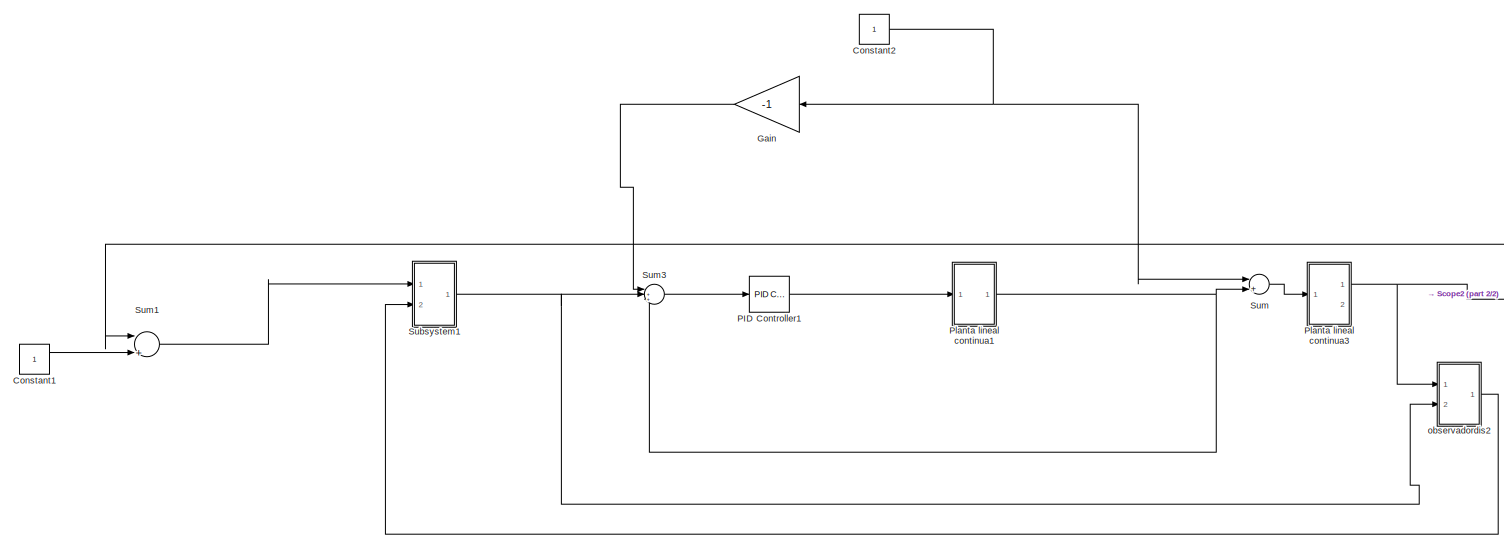
[diagram: root canvas - part 1/2, most of the canvas]
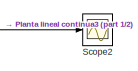
[diagram: root canvas - part 2/2, middle right region]
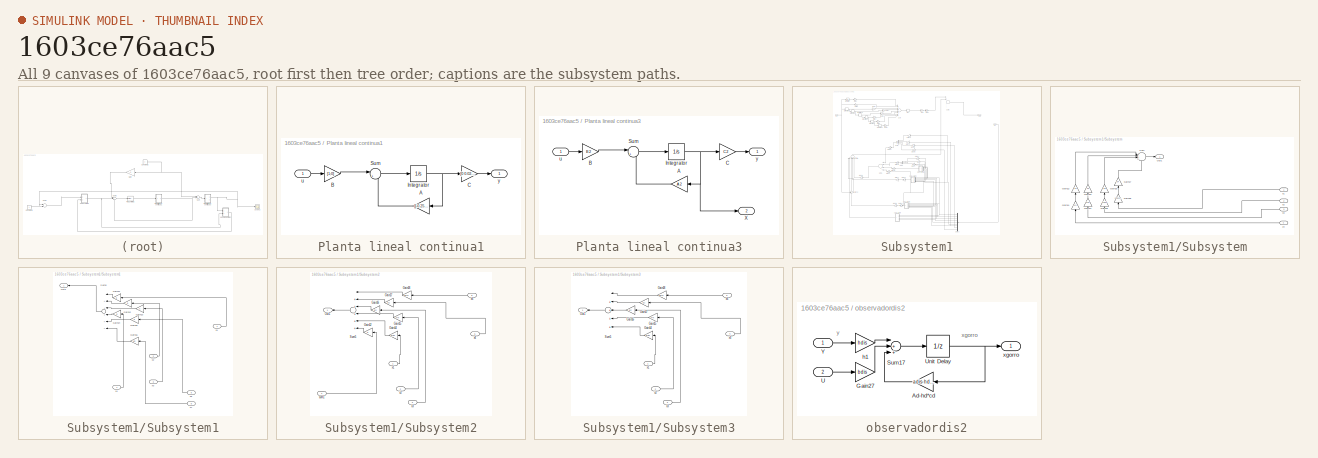
[diagram: thumbnail index - all 9 canvases of the model, root first then tree order]
MODEL slx_1603ce76aac5
KIND model
CONFIG AbsTol = auto
CONFIG EnableMultiTasking = off
CONFIG FixedStep = auto
CONFIG MaxStep = auto
CONFIG MinStep = auto
CONFIG RelTol = 1e-3
CONFIG SampleTimeConstraint = Unconstrained
CONFIG Solver = VariableStepAuto
CONFIG SolverName = VariableStepAuto
CONFIG StartTime = 0.0
CONFIG StopTime = 600
BLOCK [Constant] Constant1
BLOCK [Constant] Constant2
BLOCK [Gain] Gain
  Gain = -1
  OutDataTypeStr = Inherit: Inherit via internal rule
  ParamDataTypeStr = Inherit: Inherit via internal rule
  SaturateOnIntegerOverflow = off
BLOCK [Reference] PID Controller1  REF=simulink/Continuous/PID Controller
  Ports = [1, 1]
  SourceBlock = simulink/Continuous/PID Controller
  SourceProductBaseCode = SL
  SourceProductName = Simulink
  SourceType = PID 1dof
BLOCK [SubSystem] Planta lineal continua1
  Ports = [1, 1]
  RequestExecContextInheritance = off
BLOCK [Gain] Planta lineal continua1/A
  Gain = [[-0.25,-0.025];[1 0]]
  Multiplication = Matrix(K*u) (u vector)
  OutDataTypeStr = Inherit: Inherit via internal rule
  ParamDataTypeStr = Inherit: Inherit via internal rule
  SaturateOnIntegerOverflow = off
BLOCK [Gain] Planta lineal continua1/B
  Gain = [1;0]
  Multiplication = Matrix(K*u) (u vector)
  OutDataTypeStr = Inherit: Inherit via internal rule
  ParamDataTypeStr = Inherit: Inherit via internal rule
  SaturateOnIntegerOverflow = off
BLOCK [Gain] Planta lineal continua1/C
  Gain = [0 0.025]
  Multiplication = Matrix(K*u) (u vector)
  OutDataTypeStr = Inherit: Inherit via internal rule
  ParamDataTypeStr = Inherit: Inherit via internal rule
  SaturateOnIntegerOverflow = off
BLOCK [Integrator] Planta lineal continua1/Integrator
  Ports = [1, 1]
BLOCK [Sum] Planta lineal continua1/Sum
  IconShape = round
  InputSameDT = off
  Inputs = |++
  OutDataTypeStr = Inherit: Inherit via internal rule
  Ports = [2, 1]
  SaturateOnIntegerOverflow = off
BLOCK [Inport] Planta lineal continua1/u
  IconDisplay = Port number
BLOCK [Outport] Planta lineal continua1/y
  IconDisplay = Port number
BLOCK [SubSystem] Planta lineal continua3
  Ports = [1, 2]
  RequestExecContextInheritance = off
BLOCK [Gain] Planta lineal continua3/A
  Gain = A2
  Multiplication = Matrix(K*u) (u vector)
  OutDataTypeStr = Inherit: Inherit via internal rule
  ParamDataTypeStr = Inherit: Inherit via internal rule
  SaturateOnIntegerOverflow = off
BLOCK [Gain] Planta lineal continua3/B
  Gain = B2
  Multiplication = Matrix(K*u) (u vector)
  OutDataTypeStr = Inherit: Inherit via internal rule
  ParamDataTypeStr = Inherit: Inherit via internal rule
  SaturateOnIntegerOverflow = off
BLOCK [Gain] Planta lineal continua3/C
  Gain = C2
  Multiplication = Matrix(K*u) (u vector)
  OutDataTypeStr = Inherit: Inherit via internal rule
  ParamDataTypeStr = Inherit: Inherit via internal rule
  SaturateOnIntegerOverflow = off
BLOCK [Integrator] Planta lineal continua3/Integrator
  Ports = [1, 1]
BLOCK [Sum] Planta lineal continua3/Sum
  IconShape = round
  InputSameDT = off
  Inputs = |++
  OutDataTypeStr = Inherit: Inherit via internal rule
  Ports = [2, 1]
  SaturateOnIntegerOverflow = off
BLOCK [Outport] Planta lineal continua3/X
  IconDisplay = Port number
  Port = 2
BLOCK [Inport] Planta lineal continua3/u
  IconDisplay = Port number
BLOCK [Outport] Planta lineal continua3/y
  IconDisplay = Port number
BLOCK [Scope] Scope2
  Floating = off
  NumInputPorts = 1
  Ports = [1]
  ScopeSpecificationString = Simulink.scopes.TimeScopeBlockCfg('CurrentConfiguration', extmgr.ConfigurationSet(extmgr.Configuration('Core','General UI',true),extmgr.Configuration('Core','Source UI',true),extmgr.Configuration('Sources','WiredSimulink',true,'DataLoggingVariableName','ScopeData1'),extmgr.Configuration('Visuals','Time Domain',true,'SerializedDisplays',{struct('MinYLimReal','-0.1362','MaxYLimReal','1.22584','YLabe...<+1434ch>
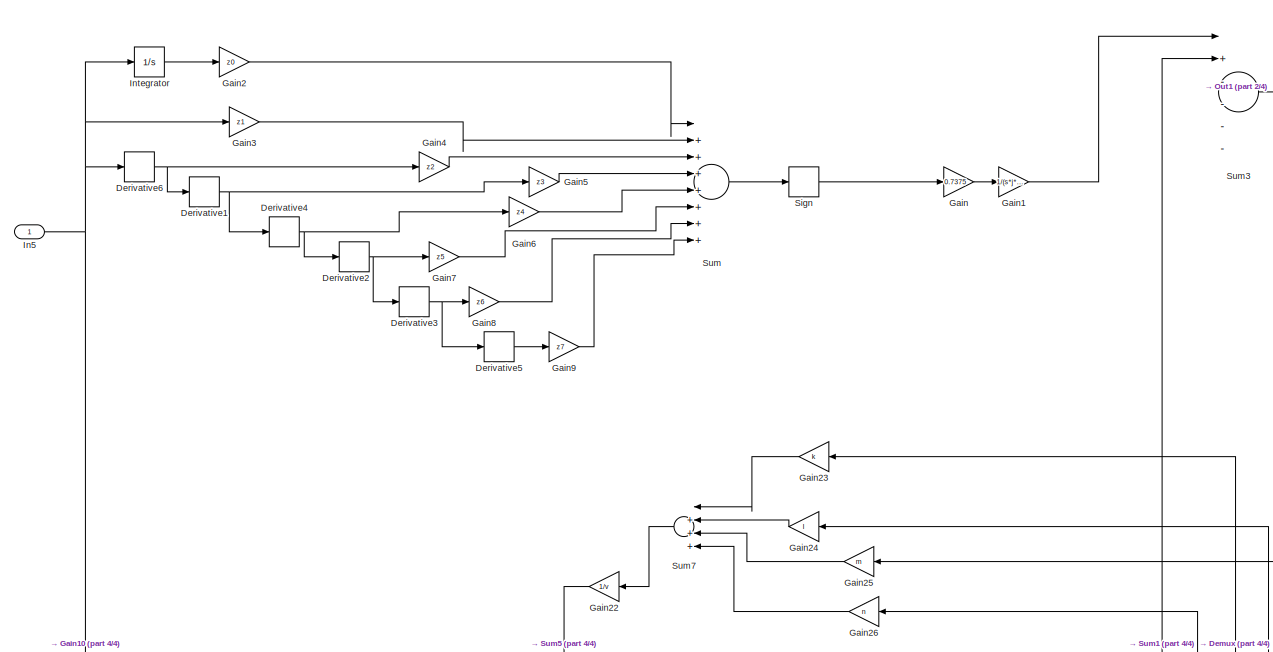
[diagram: Subsystem1 - part 1/4, top center region]
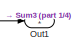
[diagram: Subsystem1 - part 2/4, top right region]
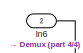
[diagram: Subsystem1 - part 3/4, top right region]
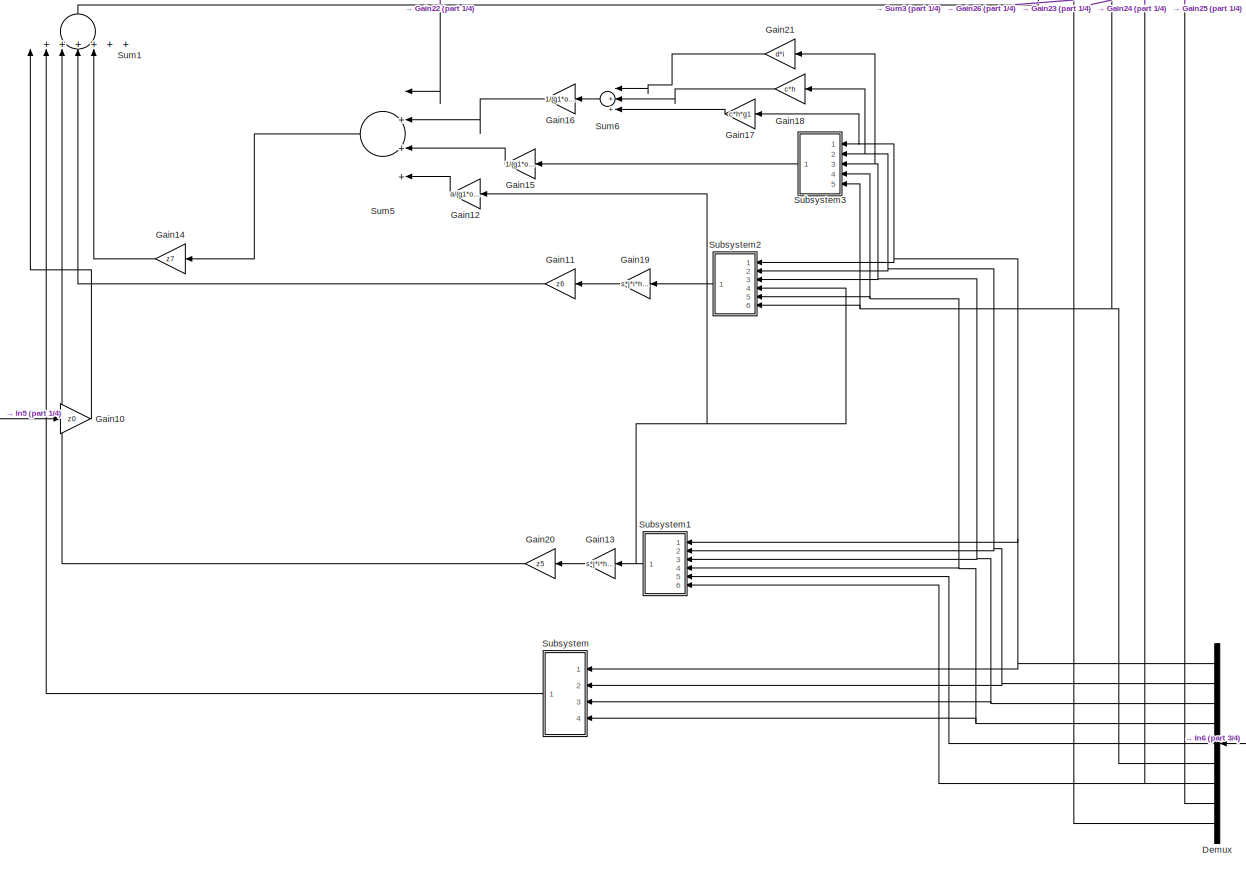
[diagram: Subsystem1 - part 4/4, bottom center region]
BLOCK [SubSystem] Subsystem1
  Ports = [2, 1]
  RequestExecContextInheritance = off
BLOCK [Demux] Subsystem1/Demux
  DisplayOption = bar
  Outputs = 9
  Ports = [1, 9]
BLOCK [Derivative] Subsystem1/Derivative1
BLOCK [Derivative] Subsystem1/Derivative2
BLOCK [Derivative] Subsystem1/Derivative3
BLOCK [Derivative] Subsystem1/Derivative4
BLOCK [Derivative] Subsystem1/Derivative5
BLOCK [Derivative] Subsystem1/Derivative6
BLOCK [Gain] Subsystem1/Gain
  Gain = 0.7375
  OutDataTypeStr = Inherit: Inherit via internal rule
  ParamDataTypeStr = Inherit: Inherit via internal rule
  SaturateOnIntegerOverflow = off
BLOCK [Gain] Subsystem1/Gain1
  Gain = 1/(s*j*i*h*g1*a*g2*o*v)
  OutDataTypeStr = Inherit: Inherit via internal rule
  ParamDataTypeStr = Inherit: Inherit via internal rule
  SaturateOnIntegerOverflow = off
BLOCK [Gain] Subsystem1/Gain10
  Gain = z0
  OutDataTypeStr = Inherit: Inherit via internal rule
  ParamDataTypeStr = Inherit: Inherit via internal rule
  SaturateOnIntegerOverflow = off
BLOCK [Gain] Subsystem1/Gain11
  Gain = z6
  OutDataTypeStr = Inherit: Inherit via internal rule
  ParamDataTypeStr = Inherit: Inherit via internal rule
  SaturateOnIntegerOverflow = off
BLOCK [Gain] Subsystem1/Gain12
  Gain = a/(g1*o*v)
  OutDataTypeStr = Inherit: Inherit via internal rule
  ParamDataTypeStr = Inherit: Inherit via internal rule
  SaturateOnIntegerOverflow = off
BLOCK [Gain] Subsystem1/Gain13
  Gain = s*j*i*h*g1
  OutDataTypeStr = Inherit: Inherit via internal rule
  ParamDataTypeStr = Inherit: Inherit via internal rule
  SaturateOnIntegerOverflow = off
BLOCK [Gain] Subsystem1/Gain14
  Gain = z7
  OutDataTypeStr = Inherit: Inherit via internal rule
  ParamDataTypeStr = Inherit: Inherit via internal rule
  SaturateOnIntegerOverflow = off
BLOCK [Gain] Subsystem1/Gain15
  Gain = 1/(g1*o*v)
  OutDataTypeStr = Inherit: Inherit via internal rule
  ParamDataTypeStr = Inherit: Inherit via internal rule
  SaturateOnIntegerOverflow = off
BLOCK [Gain] Subsystem1/Gain16
  Gain = 1/(g1*o*v)
  OutDataTypeStr = Inherit: Inherit via internal rule
  ParamDataTypeStr = Inherit: Inherit via internal rule
  SaturateOnIntegerOverflow = off
BLOCK [Gain] Subsystem1/Gain17
  Gain = c*h*g1
  OutDataTypeStr = Inherit: Inherit via internal rule
  ParamDataTypeStr = Inherit: Inherit via internal rule
  SaturateOnIntegerOverflow = off
BLOCK [Gain] Subsystem1/Gain18
  Gain = c*h
  OutDataTypeStr = Inherit: Inherit via internal rule
  ParamDataTypeStr = Inherit: Inherit via internal rule
  SaturateOnIntegerOverflow = off
BLOCK [Gain] Subsystem1/Gain19
  Gain = s*j*i*h*g1
  OutDataTypeStr = Inherit: Inherit via internal rule
  ParamDataTypeStr = Inherit: Inherit via internal rule
  SaturateOnIntegerOverflow = off
BLOCK [Gain] Subsystem1/Gain2
  Gain = z0
  OutDataTypeStr = Inherit: Inherit via internal rule
  ParamDataTypeStr = Inherit: Inherit via internal rule
  SaturateOnIntegerOverflow = off
BLOCK [Gain] Subsystem1/Gain20
  Gain = z5
  OutDataTypeStr = Inherit: Inherit via internal rule
  ParamDataTypeStr = Inherit: Inherit via internal rule
  SaturateOnIntegerOverflow = off
BLOCK [Gain] Subsystem1/Gain21
  Gain = d*i
  OutDataTypeStr = Inherit: Inherit via internal rule
  ParamDataTypeStr = Inherit: Inherit via internal rule
  SaturateOnIntegerOverflow = off
BLOCK [Gain] Subsystem1/Gain22
  Gain = 1/v
  OutDataTypeStr = Inherit: Inherit via internal rule
  ParamDataTypeStr = Inherit: Inherit via internal rule
  SaturateOnIntegerOverflow = off
BLOCK [Gain] Subsystem1/Gain23
  Gain = k
  OutDataTypeStr = Inherit: Inherit via internal rule
  ParamDataTypeStr = Inherit: Inherit via internal rule
  SaturateOnIntegerOverflow = off
BLOCK [Gain] Subsystem1/Gain24
  Gain = l
  OutDataTypeStr = Inherit: Inherit via internal rule
  ParamDataTypeStr = Inherit: Inherit via internal rule
  SaturateOnIntegerOverflow = off
BLOCK [Gain] Subsystem1/Gain25
  Gain = m
  OutDataTypeStr = Inherit: Inherit via internal rule
  ParamDataTypeStr = Inherit: Inherit via internal rule
  SaturateOnIntegerOverflow = off
BLOCK [Gain] Subsystem1/Gain26
  Gain = n
  OutDataTypeStr = Inherit: Inherit via internal rule
  ParamDataTypeStr = Inherit: Inherit via internal rule
  SaturateOnIntegerOverflow = off
BLOCK [Gain] Subsystem1/Gain3
  Gain = z1
  OutDataTypeStr = Inherit: Inherit via internal rule
  ParamDataTypeStr = Inherit: Inherit via internal rule
  SaturateOnIntegerOverflow = off
BLOCK [Gain] Subsystem1/Gain4
  Gain = z2
  OutDataTypeStr = Inherit: Inherit via internal rule
  ParamDataTypeStr = Inherit: Inherit via internal rule
  SaturateOnIntegerOverflow = off
BLOCK [Gain] Subsystem1/Gain5
  Gain = z3
  OutDataTypeStr = Inherit: Inherit via internal rule
  ParamDataTypeStr = Inherit: Inherit via internal rule
  SaturateOnIntegerOverflow = off
BLOCK [Gain] Subsystem1/Gain6
  Gain = z4
  OutDataTypeStr = Inherit: Inherit via internal rule
  ParamDataTypeStr = Inherit: Inherit via internal rule
  SaturateOnIntegerOverflow = off
BLOCK [Gain] Subsystem1/Gain7
  Gain = z5
  OutDataTypeStr = Inherit: Inherit via internal rule
  ParamDataTypeStr = Inherit: Inherit via internal rule
  SaturateOnIntegerOverflow = off
BLOCK [Gain] Subsystem1/Gain8
  Gain = z6
  OutDataTypeStr = Inherit: Inherit via internal rule
  ParamDataTypeStr = Inherit: Inherit via internal rule
  SaturateOnIntegerOverflow = off
BLOCK [Gain] Subsystem1/Gain9
  Gain = z7
  OutDataTypeStr = Inherit: Inherit via internal rule
  ParamDataTypeStr = Inherit: Inherit via internal rule
  SaturateOnIntegerOverflow = off
BLOCK [Inport] Subsystem1/In5
  IconDisplay = Port number
BLOCK [Inport] Subsystem1/In6
  IconDisplay = Port number
  Port = 2
BLOCK [Integrator] Subsystem1/Integrator
  Ports = [1, 1]
BLOCK [Outport] Subsystem1/Out1
  IconDisplay = Port number
BLOCK [Signum] Subsystem1/Sign
  ZeroCross = off
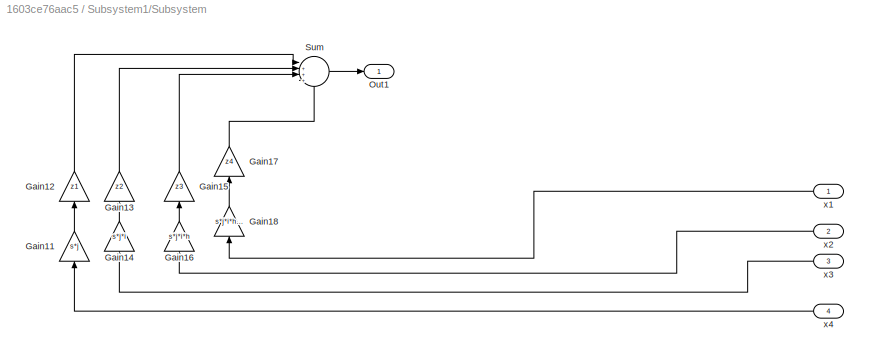
BLOCK [SubSystem] Subsystem1/Subsystem
  Ports = [4, 1]
  RequestExecContextInheritance = off
BLOCK [Gain] Subsystem1/Subsystem/Gain11
  Gain = s*j
  OutDataTypeStr = Inherit: Inherit via internal rule
  ParamDataTypeStr = Inherit: Inherit via internal rule
  SaturateOnIntegerOverflow = off
BLOCK [Gain] Subsystem1/Subsystem/Gain12
  Gain = z1
  OutDataTypeStr = Inherit: Inherit via internal rule
  ParamDataTypeStr = Inherit: Inherit via internal rule
  SaturateOnIntegerOverflow = off
BLOCK [Gain] Subsystem1/Subsystem/Gain13
  Gain = z2
  OutDataTypeStr = Inherit: Inherit via internal rule
  ParamDataTypeStr = Inherit: Inherit via internal rule
  SaturateOnIntegerOverflow = off
BLOCK [Gain] Subsystem1/Subsystem/Gain14
  Gain = s*j*i
  OutDataTypeStr = Inherit: Inherit via internal rule
  ParamDataTypeStr = Inherit: Inherit via internal rule
  SaturateOnIntegerOverflow = off
BLOCK [Gain] Subsystem1/Subsystem/Gain15
  Gain = z3
  OutDataTypeStr = Inherit: Inherit via internal rule
  ParamDataTypeStr = Inherit: Inherit via internal rule
  SaturateOnIntegerOverflow = off
BLOCK [Gain] Subsystem1/Subsystem/Gain16
  Gain = s*j*i*h
  OutDataTypeStr = Inherit: Inherit via internal rule
  ParamDataTypeStr = Inherit: Inherit via internal rule
  SaturateOnIntegerOverflow = off
BLOCK [Gain] Subsystem1/Subsystem/Gain17
  Gain = z4
  OutDataTypeStr = Inherit: Inherit via internal rule
  ParamDataTypeStr = Inherit: Inherit via internal rule
  SaturateOnIntegerOverflow = off
BLOCK [Gain] Subsystem1/Subsystem/Gain18
  Gain = s*j*i*h*g1
  OutDataTypeStr = Inherit: Inherit via internal rule
  ParamDataTypeStr = Inherit: Inherit via internal rule
  SaturateOnIntegerOverflow = off
BLOCK [Outport] Subsystem1/Subsystem/Out1
  IconDisplay = Port number
BLOCK [Sum] Subsystem1/Subsystem/Sum
  IconShape = round
  InputSameDT = off
  Inputs = |++++
  OutDataTypeStr = Inherit: Inherit via internal rule
  Ports = [4, 1]
  SaturateOnIntegerOverflow = off
BLOCK [Inport] Subsystem1/Subsystem/x1 
  IconDisplay = Port number
BLOCK [Inport] Subsystem1/Subsystem/x2 
  IconDisplay = Port number
  Port = 2
BLOCK [Inport] Subsystem1/Subsystem/x3 
  IconDisplay = Port number
  Port = 3
BLOCK [Inport] Subsystem1/Subsystem/x4 
  IconDisplay = Port number
  Port = 4
BLOCK [SubSystem] Subsystem1/Subsystem1
  Ports = [6, 1]
  RequestExecContextInheritance = off
BLOCK [Gain] Subsystem1/Subsystem1/Gain11
  Gain = a
  OutDataTypeStr = Inherit: Inherit via internal rule
  ParamDataTypeStr = Inherit: Inherit via internal rule
  SaturateOnIntegerOverflow = off
BLOCK [Gain] Subsystem1/Subsystem1/Gain12
  Gain = b
  OutDataTypeStr = Inherit: Inherit via internal rule
  ParamDataTypeStr = Inherit: Inherit via internal rule
  SaturateOnIntegerOverflow = off
BLOCK [Gain] Subsystem1/Subsystem1/Gain13
  Gain = c
  OutDataTypeStr = Inherit: Inherit via internal rule
  ParamDataTypeStr = Inherit: Inherit via internal rule
  SaturateOnIntegerOverflow = off
BLOCK [Gain] Subsystem1/Subsystem1/Gain14
  Gain = d
  OutDataTypeStr = Inherit: Inherit via internal rule
  ParamDataTypeStr = Inherit: Inherit via internal rule
  SaturateOnIntegerOverflow = off
BLOCK [Gain] Subsystem1/Subsystem1/Gain15
  Gain = e
  OutDataTypeStr = Inherit: Inherit via internal rule
  ParamDataTypeStr = Inherit: Inherit via internal rule
  SaturateOnIntegerOverflow = off
BLOCK [Gain] Subsystem1/Subsystem1/Gain16
  Gain = g2
  OutDataTypeStr = Inherit: Inherit via internal rule
  ParamDataTypeStr = Inherit: Inherit via internal rule
  SaturateOnIntegerOverflow = off
BLOCK [Outport] Subsystem1/Subsystem1/Out1
  IconDisplay = Port number
BLOCK [Sum] Subsystem1/Subsystem1/Sum5
  InputSameDT = off
  Inputs = |++++++
  OutDataTypeStr = Inherit: Inherit via internal rule
  Ports = [6, 1]
  SaturateOnIntegerOverflow = off
BLOCK [Inport] Subsystem1/Subsystem1/x1 
  IconDisplay = Port number
BLOCK [Inport] Subsystem1/Subsystem1/x2 
  IconDisplay = Port number
  Port = 2
BLOCK [Inport] Subsystem1/Subsystem1/x3 
  IconDisplay = Port number
  Port = 3
BLOCK [Inport] Subsystem1/Subsystem1/x4 
  IconDisplay = Port number
  Port = 4
BLOCK [Inport] Subsystem1/Subsystem1/x5 
  IconDisplay = Port number
  Port = 5
BLOCK [Inport] Subsystem1/Subsystem1/x7 
  IconDisplay = Port number
  Port = 6
BLOCK [SubSystem] Subsystem1/Subsystem2
  Ports = [6, 1]
  RequestExecContextInheritance = off
BLOCK [Gain] Subsystem1/Subsystem2/Gain12
  Gain = a
  OutDataTypeStr = Inherit: Inherit via internal rule
  ParamDataTypeStr = Inherit: Inherit via internal rule
  SaturateOnIntegerOverflow = off
BLOCK [Gain] Subsystem1/Subsystem2/Gain14
  Gain = b*g1
  OutDataTypeStr = Inherit: Inherit via internal rule
  ParamDataTypeStr = Inherit: Inherit via internal rule
  SaturateOnIntegerOverflow = off
BLOCK [Gain] Subsystem1/Subsystem2/Gain15
  Gain = s*h
  OutDataTypeStr = Inherit: Inherit via internal rule
  ParamDataTypeStr = Inherit: Inherit via internal rule
  SaturateOnIntegerOverflow = off
BLOCK [Gain] Subsystem1/Subsystem2/Gain16
  Gain = d*i
  OutDataTypeStr = Inherit: Inherit via internal rule
  ParamDataTypeStr = Inherit: Inherit via internal rule
  SaturateOnIntegerOverflow = off
BLOCK [Gain] Subsystem1/Subsystem2/Gain17
  Gain = e*j
  OutDataTypeStr = Inherit: Inherit via internal rule
  ParamDataTypeStr = Inherit: Inherit via internal rule
  SaturateOnIntegerOverflow = off
BLOCK [Gain] Subsystem1/Subsystem2/Gain18
  Gain = g2*o
  OutDataTypeStr = Inherit: Inherit via internal rule
  ParamDataTypeStr = Inherit: Inherit via internal rule
  SaturateOnIntegerOverflow = off
BLOCK [Outport] Subsystem1/Subsystem2/Out1
  IconDisplay = Port number
BLOCK [Sum] Subsystem1/Subsystem2/Sum5
  InputSameDT = off
  Inputs = |++++++
  OutDataTypeStr = Inherit: Inherit via internal rule
  Ports = [6, 1]
  SaturateOnIntegerOverflow = off
BLOCK [Inport] Subsystem1/Subsystem2/sum1 
  IconDisplay = Port number
  Port = 4
BLOCK [Inport] Subsystem1/Subsystem2/x1 
  IconDisplay = Port number
BLOCK [Inport] Subsystem1/Subsystem2/x2 
  IconDisplay = Port number
  Port = 2
BLOCK [Inport] Subsystem1/Subsystem2/x3 
  IconDisplay = Port number
  Port = 3
BLOCK [Inport] Subsystem1/Subsystem2/x4 
  IconDisplay = Port number
  Port = 5
BLOCK [Inport] Subsystem1/Subsystem2/x6 
  IconDisplay = Port number
  Port = 6
BLOCK [SubSystem] Subsystem1/Subsystem3
  Ports = [5, 1]
  RequestExecContextInheritance = off
BLOCK [Gain] Subsystem1/Subsystem3/Gain14
  Gain = b*g1
  OutDataTypeStr = Inherit: Inherit via internal rule
  ParamDataTypeStr = Inherit: Inherit via internal rule
  SaturateOnIntegerOverflow = off
BLOCK [Gain] Subsystem1/Subsystem3/Gain15
  Gain = s*h
  OutDataTypeStr = Inherit: Inherit via internal rule
  ParamDataTypeStr = Inherit: Inherit via internal rule
  SaturateOnIntegerOverflow = off
BLOCK [Gain] Subsystem1/Subsystem3/Gain16
  Gain = d*i
  OutDataTypeStr = Inherit: Inherit via internal rule
  ParamDataTypeStr = Inherit: Inherit via internal rule
  SaturateOnIntegerOverflow = off
BLOCK [Gain] Subsystem1/Subsystem3/Gain17
  Gain = e*j
  OutDataTypeStr = Inherit: Inherit via internal rule
  ParamDataTypeStr = Inherit: Inherit via internal rule
  SaturateOnIntegerOverflow = off
BLOCK [Gain] Subsystem1/Subsystem3/Gain18
  Gain = g2*o
  OutDataTypeStr = Inherit: Inherit via internal rule
  ParamDataTypeStr = Inherit: Inherit via internal rule
  SaturateOnIntegerOverflow = off
BLOCK [Outport] Subsystem1/Subsystem3/Out1
  IconDisplay = Port number
BLOCK [Sum] Subsystem1/Subsystem3/Sum5
  InputSameDT = off
  Inputs = |+++++
  OutDataTypeStr = Inherit: Inherit via internal rule
  Ports = [5, 1]
  SaturateOnIntegerOverflow = off
BLOCK [Inport] Subsystem1/Subsystem3/x1 
  IconDisplay = Port number
BLOCK [Inport] Subsystem1/Subsystem3/x2 
  IconDisplay = Port number
  Port = 2
BLOCK [Inport] Subsystem1/Subsystem3/x3 
  IconDisplay = Port number
  Port = 3
BLOCK [Inport] Subsystem1/Subsystem3/x4 
  IconDisplay = Port number
  Port = 4
BLOCK [Inport] Subsystem1/Subsystem3/x6 
  IconDisplay = Port number
  Port = 5
BLOCK [Sum] Subsystem1/Sum
  InputSameDT = off
  Inputs = |++++++++
  OutDataTypeStr = Inherit: Inherit via internal rule
  Ports = [8, 1]
  SaturateOnIntegerOverflow = off
BLOCK [Sum] Subsystem1/Sum1
  InputSameDT = off
  Inputs = |+++++++
  OutDataTypeStr = Inherit: Inherit via internal rule
  Ports = [7, 1]
  SaturateOnIntegerOverflow = off
BLOCK [Sum] Subsystem1/Sum3
  InputSameDT = off
  Inputs = |+-----
  OutDataTypeStr = Inherit: Inherit via internal rule
  Ports = [6, 1]
  SaturateOnIntegerOverflow = off
BLOCK [Sum] Subsystem1/Sum5
  InputSameDT = off
  Inputs = |++++
  OutDataTypeStr = Inherit: Inherit via internal rule
  Ports = [4, 1]
  SaturateOnIntegerOverflow = off
BLOCK [Sum] Subsystem1/Sum6
  InputSameDT = off
  Inputs = |+++
  OutDataTypeStr = Inherit: Inherit via internal rule
  Ports = [3, 1]
  SaturateOnIntegerOverflow = off
BLOCK [Sum] Subsystem1/Sum7
  InputSameDT = off
  Inputs = |++++
  OutDataTypeStr = Inherit: Inherit via internal rule
  Ports = [4, 1]
  SaturateOnIntegerOverflow = off
BLOCK [Sum] Sum
  InputSameDT = off
  Inputs = |++
  OutDataTypeStr = Inherit: Inherit via internal rule
  Ports = [2, 1]
  SaturateOnIntegerOverflow = off
BLOCK [Sum] Sum1
  InputSameDT = off
  Inputs = |+-
  OutDataTypeStr = Inherit: Inherit via internal rule
  Ports = [2, 1]
  SaturateOnIntegerOverflow = off
BLOCK [Sum] Sum3
  IconShape = round
  InputSameDT = off
  Inputs = |++-
  OutDataTypeStr = Inherit: Inherit via internal rule
  Ports = [3, 1]
  SaturateOnIntegerOverflow = off
BLOCK [SubSystem] observadordis2
  Ports = [2, 1]
  RequestExecContextInheritance = off
BLOCK [Gain] observadordis2/Ad-hd*cd
  Gain = adis-hdis*cdis
  Multiplication = Matrix(K*u) (u vector)
  OutDataTypeStr = Inherit: Inherit via internal rule
  ParamDataTypeStr = Inherit: Inherit via internal rule
  SampleTime = tm
  SaturateOnIntegerOverflow = off
BLOCK [Gain] observadordis2/Gain27
  Gain = bdis
  Multiplication = Matrix(K*u) (u vector)
  OutDataTypeStr = Inherit: Inherit via internal rule
  ParamDataTypeStr = Inherit: Inherit via internal rule
  SampleTime = tm
  SaturateOnIntegerOverflow = off
BLOCK [Sum] observadordis2/Sum17
  InputSameDT = off
  Inputs = |+++
  OutDataTypeStr = Inherit: Inherit via internal rule
  Ports = [3, 1]
  SaturateOnIntegerOverflow = off
BLOCK [Inport] observadordis2/U
  IconDisplay = Port number
  Port = 2
BLOCK [UnitDelay] observadordis2/Unit Delay
  HasFrameUpgradeWarning = on
  SampleTime = tm
BLOCK [Inport] observadordis2/Y
  IconDisplay = Port number
BLOCK [Gain] observadordis2/h1
  Gain = hdis
  Multiplication = Matrix(K*u) (u vector)
  OutDataTypeStr = Inherit: Inherit via internal rule
  ParamDataTypeStr = Inherit: Inherit via internal rule
  SampleTime = tm
  SaturateOnIntegerOverflow = off
BLOCK [Outport] observadordis2/xgorro
  IconDisplay = Port number
ANNOTATION observadordis2: xgorro
ANNOTATION observadordis2: y
LINE Constant1:1 -> Sum1:2
NET Constant2:1 -> Gain:1, Sum:1
LINE Gain:1 -> Sum3:1
LINE PID Controller1:1 -> Planta lineal continua1:1
LINE Planta lineal continua1/A:1 -> Planta lineal continua1/Sum:2
LINE Planta lineal continua1/B:1 -> Planta lineal continua1/Sum:1
LINE Planta lineal continua1/C:1 -> Planta lineal continua1/y:1
NET Planta lineal continua1/Integrator:1 -> Planta lineal continua1/A:1, Planta lineal continua1/C:1
LINE Planta lineal continua1/Sum:1 -> Planta lineal continua1/Integrator:1
LINE Planta lineal continua1/u:1 -> Planta lineal continua1/B:1
NET Planta lineal continua1:1 -> Sum3:3, Sum:2
LINE Planta lineal continua3/A:1 -> Planta lineal continua3/Sum:2
LINE Planta lineal continua3/B:1 -> Planta lineal continua3/Sum:1
LINE Planta lineal continua3/C:1 -> Planta lineal continua3/y:1
NET Planta lineal continua3/Integrator:1 -> Planta lineal continua3/A:1, Planta lineal continua3/C:1, Planta lineal continua3/X:1
LINE Planta lineal continua3/Sum:1 -> Planta lineal continua3/Integrator:1
LINE Planta lineal continua3/u:1 -> Planta lineal continua3/B:1
NET Planta lineal continua3:1 -> Scope2:1, Sum1:1, observadordis2:1
NET Subsystem1/Demux:1 -> Subsystem1/Gain17:1, Subsystem1/Subsystem1:1, Subsystem1/Subsystem2:1, Subsystem1/Subsystem3:1, Subsystem1/Subsystem:1
NET Subsystem1/Demux:2 -> Subsystem1/Gain18:1, Subsystem1/Subsystem1:2, Subsystem1/Subsystem2:2, Subsystem1/Subsystem3:2, Subsystem1/Subsystem:2
NET Subsystem1/Demux:3 -> Subsystem1/Gain21:1, Subsystem1/Subsystem1:3, Subsystem1/Subsystem2:3, Subsystem1/Subsystem3:3, Subsystem1/Subsystem:3
NET Subsystem1/Demux:4 -> Subsystem1/Subsystem1:4, Subsystem1/Subsystem2:5, Subsystem1/Subsystem3:4, Subsystem1/Subsystem:4
LINE Subsystem1/Demux:5 -> Subsystem1/Subsystem1:5
NET Subsystem1/Demux:6 -> Subsystem1/Gain23:1, Subsystem1/Subsystem2:6, Subsystem1/Subsystem3:5
NET Subsystem1/Demux:7 -> Subsystem1/Gain24:1, Subsystem1/Subsystem1:6
LINE Subsystem1/Demux:8 -> Subsystem1/Gain25:1
LINE Subsystem1/Demux:9 -> Subsystem1/Gain26:1
NET Subsystem1/Derivative1:1 -> Subsystem1/Derivative4:1, Subsystem1/Gain5:1
NET Subsystem1/Derivative2:1 -> Subsystem1/Derivative3:1, Subsystem1/Gain7:1
NET Subsystem1/Derivative3:1 -> Subsystem1/Derivative5:1, Subsystem1/Gain8:1
NET Subsystem1/Derivative4:1 -> Subsystem1/Derivative2:1, Subsystem1/Gain6:1
LINE Subsystem1/Derivative5:1 -> Subsystem1/Gain9:1
NET Subsystem1/Derivative6:1 -> Subsystem1/Derivative1:1, Subsystem1/Gain4:1
LINE Subsystem1/Gain10:1 -> Subsystem1/Sum1:1
LINE Subsystem1/Gain11:1 -> Subsystem1/Sum1:4
LINE Subsystem1/Gain12:1 -> Subsystem1/Sum5:4
LINE Subsystem1/Gain13:1 -> Subsystem1/Gain20:1
LINE Subsystem1/Gain14:1 -> Subsystem1/Sum1:5
LINE Subsystem1/Gain15:1 -> Subsystem1/Sum5:3
LINE Subsystem1/Gain16:1 -> Subsystem1/Sum5:2
LINE Subsystem1/Gain17:1 -> Subsystem1/Sum6:3
LINE Subsystem1/Gain18:1 -> Subsystem1/Sum6:2
LINE Subsystem1/Gain19:1 -> Subsystem1/Gain11:1
LINE Subsystem1/Gain1:1 -> Subsystem1/Sum3:1
LINE Subsystem1/Gain20:1 -> Subsystem1/Sum1:3
LINE Subsystem1/Gain21:1 -> Subsystem1/Sum6:1
LINE Subsystem1/Gain22:1 -> Subsystem1/Sum5:1
LINE Subsystem1/Gain23:1 -> Subsystem1/Sum7:1
LINE Subsystem1/Gain24:1 -> Subsystem1/Sum7:2
LINE Subsystem1/Gain25:1 -> Subsystem1/Sum7:3
LINE Subsystem1/Gain26:1 -> Subsystem1/Sum7:4
LINE Subsystem1/Gain2:1 -> Subsystem1/Sum:1
LINE Subsystem1/Gain3:1 -> Subsystem1/Sum:2
LINE Subsystem1/Gain4:1 -> Subsystem1/Sum:3
LINE Subsystem1/Gain5:1 -> Subsystem1/Sum:4
LINE Subsystem1/Gain6:1 -> Subsystem1/Sum:5
LINE Subsystem1/Gain7:1 -> Subsystem1/Sum:6
LINE Subsystem1/Gain8:1 -> Subsystem1/Sum:7
LINE Subsystem1/Gain9:1 -> Subsystem1/Sum:8
LINE Subsystem1/Gain:1 -> Subsystem1/Gain1:1
NET Subsystem1/In5:1 -> Subsystem1/Derivative6:1, Subsystem1/Gain10:1, Subsystem1/Gain3:1, Subsystem1/Integrator:1
LINE Subsystem1/In6:1 -> Subsystem1/Demux:1
LINE Subsystem1/Integrator:1 -> Subsystem1/Gain2:1
LINE Subsystem1/Sign:1 -> Subsystem1/Gain:1
LINE Subsystem1/Subsystem/Gain11:1 -> Subsystem1/Subsystem/Gain12:1
LINE Subsystem1/Subsystem/Gain12:1 -> Subsystem1/Subsystem/Sum:1
LINE Subsystem1/Subsystem/Gain13:1 -> Subsystem1/Subsystem/Sum:2
LINE Subsystem1/Subsystem/Gain14:1 -> Subsystem1/Subsystem/Gain13:1
LINE Subsystem1/Subsystem/Gain15:1 -> Subsystem1/Subsystem/Sum:3
LINE Subsystem1/Subsystem/Gain16:1 -> Subsystem1/Subsystem/Gain15:1
LINE Subsystem1/Subsystem/Gain17:1 -> Subsystem1/Subsystem/Sum:4
LINE Subsystem1/Subsystem/Gain18:1 -> Subsystem1/Subsystem/Gain17:1
LINE Subsystem1/Subsystem/Sum:1 -> Subsystem1/Subsystem/Out1:1
LINE Subsystem1/Subsystem/x1 :1 -> Subsystem1/Subsystem/Gain18:1
LINE Subsystem1/Subsystem/x2 :1 -> Subsystem1/Subsystem/Gain16:1
LINE Subsystem1/Subsystem/x3 :1 -> Subsystem1/Subsystem/Gain14:1
LINE Subsystem1/Subsystem/x4 :1 -> Subsystem1/Subsystem/Gain11:1
LINE Subsystem1/Subsystem1/Gain11:1 -> Subsystem1/Subsystem1/Sum5:1
LINE Subsystem1/Subsystem1/Gain12:1 -> Subsystem1/Subsystem1/Sum5:2
LINE Subsystem1/Subsystem1/Gain13:1 -> Subsystem1/Subsystem1/Sum5:3
LINE Subsystem1/Subsystem1/Gain14:1 -> Subsystem1/Subsystem1/Sum5:4
LINE Subsystem1/Subsystem1/Gain15:1 -> Subsystem1/Subsystem1/Sum5:5
LINE Subsystem1/Subsystem1/Gain16:1 -> Subsystem1/Subsystem1/Sum5:6
LINE Subsystem1/Subsystem1/Sum5:1 -> Subsystem1/Subsystem1/Out1:1
LINE Subsystem1/Subsystem1/x1 :1 -> Subsystem1/Subsystem1/Gain11:1
LINE Subsystem1/Subsystem1/x2 :1 -> Subsystem1/Subsystem1/Gain12:1
LINE Subsystem1/Subsystem1/x3 :1 -> Subsystem1/Subsystem1/Gain13:1
LINE Subsystem1/Subsystem1/x4 :1 -> Subsystem1/Subsystem1/Gain14:1
LINE Subsystem1/Subsystem1/x5 :1 -> Subsystem1/Subsystem1/Gain15:1
LINE Subsystem1/Subsystem1/x7 :1 -> Subsystem1/Subsystem1/Gain16:1
NET Subsystem1/Subsystem1:1 -> Subsystem1/Gain12:1, Subsystem1/Gain13:1, Subsystem1/Subsystem2:4
LINE Subsystem1/Subsystem2/Gain12:1 -> Subsystem1/Subsystem2/Sum5:6
LINE Subsystem1/Subsystem2/Gain14:1 -> Subsystem1/Subsystem2/Sum5:5
LINE Subsystem1/Subsystem2/Gain15:1 -> Subsystem1/Subsystem2/Sum5:4
LINE Subsystem1/Subsystem2/Gain16:1 -> Subsystem1/Subsystem2/Sum5:3
LINE Subsystem1/Subsystem2/Gain17:1 -> Subsystem1/Subsystem2/Sum5:2
LINE Subsystem1/Subsystem2/Gain18:1 -> Subsystem1/Subsystem2/Sum5:1
LINE Subsystem1/Subsystem2/Sum5:1 -> Subsystem1/Subsystem2/Out1:1
LINE Subsystem1/Subsystem2/sum1 :1 -> Subsystem1/Subsystem2/Gain12:1
LINE Subsystem1/Subsystem2/x1 :1 -> Subsystem1/Subsystem2/Gain14:1
LINE Subsystem1/Subsystem2/x2 :1 -> Subsystem1/Subsystem2/Gain15:1
LINE Subsystem1/Subsystem2/x3 :1 -> Subsystem1/Subsystem2/Gain16:1
LINE Subsystem1/Subsystem2/x4 :1 -> Subsystem1/Subsystem2/Gain17:1
LINE Subsystem1/Subsystem2/x6 :1 -> Subsystem1/Subsystem2/Gain18:1
LINE Subsystem1/Subsystem2:1 -> Subsystem1/Gain19:1
LINE Subsystem1/Subsystem3/Gain14:1 -> Subsystem1/Subsystem3/Sum5:5
LINE Subsystem1/Subsystem3/Gain15:1 -> Subsystem1/Subsystem3/Sum5:4
LINE Subsystem1/Subsystem3/Gain16:1 -> Subsystem1/Subsystem3/Sum5:3
LINE Subsystem1/Subsystem3/Gain17:1 -> Subsystem1/Subsystem3/Sum5:2
LINE Subsystem1/Subsystem3/Gain18:1 -> Subsystem1/Subsystem3/Sum5:1
LINE Subsystem1/Subsystem3/Sum5:1 -> Subsystem1/Subsystem3/Out1:1
LINE Subsystem1/Subsystem3/x1 :1 -> Subsystem1/Subsystem3/Gain14:1
LINE Subsystem1/Subsystem3/x2 :1 -> Subsystem1/Subsystem3/Gain15:1
LINE Subsystem1/Subsystem3/x3 :1 -> Subsystem1/Subsystem3/Gain16:1
LINE Subsystem1/Subsystem3/x4 :1 -> Subsystem1/Subsystem3/Gain17:1
LINE Subsystem1/Subsystem3/x6 :1 -> Subsystem1/Subsystem3/Gain18:1
LINE Subsystem1/Subsystem3:1 -> Subsystem1/Gain15:1
LINE Subsystem1/Subsystem:1 -> Subsystem1/Sum1:2
LINE Subsystem1/Sum1:1 -> Subsystem1/Sum3:2
LINE Subsystem1/Sum3:1 -> Subsystem1/Out1:1
LINE Subsystem1/Sum5:1 -> Subsystem1/Gain14:1
LINE Subsystem1/Sum6:1 -> Subsystem1/Gain16:1
LINE Subsystem1/Sum7:1 -> Subsystem1/Gain22:1
LINE Subsystem1/Sum:1 -> Subsystem1/Sign:1
NET Subsystem1:1 -> Sum3:2, observadordis2:2
LINE Sum1:1 -> Subsystem1:1
LINE Sum3:1 -> PID Controller1:1
LINE Sum:1 -> Planta lineal continua3:1
LINE observadordis2/Ad-hd*cd:1 -> observadordis2/Sum17:3
LINE observadordis2/Gain27:1 -> observadordis2/Sum17:2
LINE observadordis2/Sum17:1 -> observadordis2/Unit Delay:1
LINE observadordis2/U:1 -> observadordis2/Gain27:1
NET observadordis2/Unit Delay:1 -> observadordis2/Ad-hd*cd:1, observadordis2/xgorro:1
LINE observadordis2/Y:1 -> observadordis2/h1:1
LINE observadordis2/h1:1 -> observadordis2/Sum17:1
LINE observadordis2:1 -> Subsystem1:2
note: NET lines group one-source signal fan-out (src -> all destinations, sorted); 1:1 wires keep LINE
